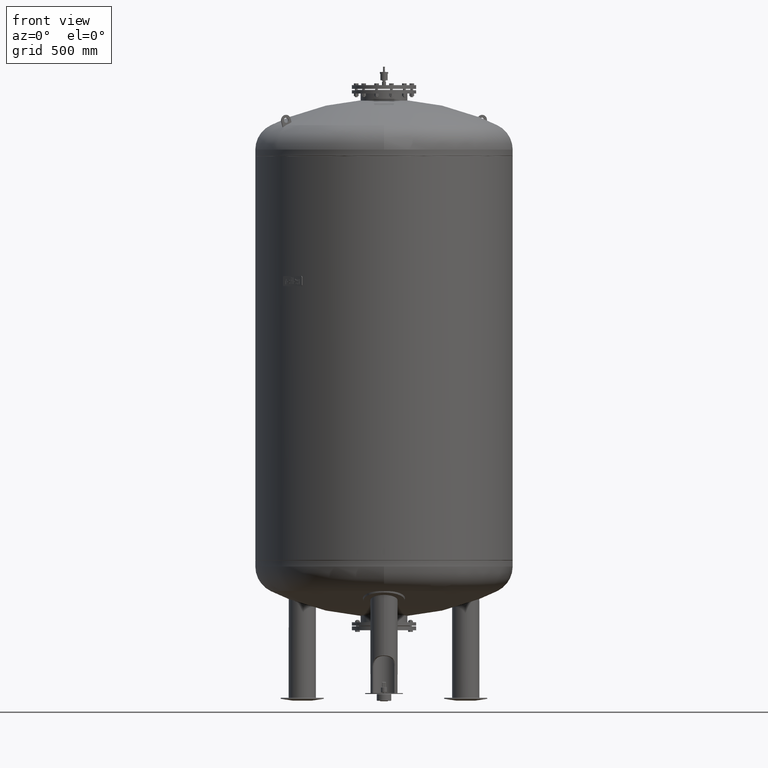
[diagram: clean part render]
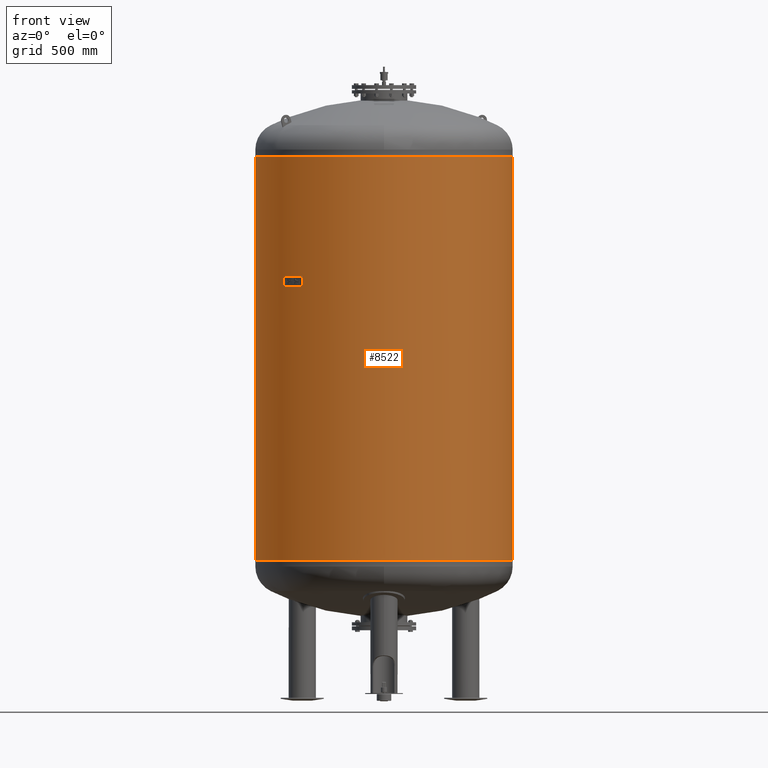
[diagram: same view with one face highlighted and labeled with its STEP entity id]
A machine part, front view. The second image highlights one B-rep face of the part: STEP entity #8522.
In plain terms, the highlighted cylindrical surface (partial cylindrical patch) has radius 750 mm, axis along (0, 0, 1).
Its self-contained STEP definition (entity closure, byte-faithful):
#8481=CARTESIAN_POINT('',(8.322769E-015,0.0,2588.500000000000000));
#8482=DIRECTION('',(1.414234E-017,0.0,1.0));
#8483=DIRECTION('',(1.0,0.0,0.0));
#8484=AXIS2_PLACEMENT_3D('',#8481,#8482,#8483);
#8485=CYLINDRICAL_SURFACE('',#8484,750.000000000000910);
#8486=CARTESIAN_POINT('',(750.000000000001360,0.0,3177.0));
#8487=VERTEX_POINT('',#8486);
#8488=CARTESIAN_POINT('',(749.999999999999890,0.0,822.999999999999770));
#8489=VERTEX_POINT('',#8488);
#8490=CARTESIAN_POINT('',(750.000000000001360,0.0,3177.0));
#8491=DIRECTION('',(0.0,0.0,-1.0));
#8492=VECTOR('',#8491,2354.0);
#8493=LINE('',#8490,#8492);
#8494=EDGE_CURVE('',#8487,#8489,#8493,.T.);
#8495=ORIENTED_EDGE('',*,*,#8494,.F.);
#8496=CARTESIAN_POINT('',(-750.000000000000910,-9.184548E-014,3177.0));
#8497=VERTEX_POINT('',#8496);
#8498=CARTESIAN_POINT('',(1.664554E-014,0.0,3177.0));
#8499=DIRECTION('',(0.0,0.0,1.0));
#8500=DIRECTION('',(1.0,0.0,0.0));
#8501=AXIS2_PLACEMENT_3D('',#8498,#8499,#8500);
#8502=CIRCLE('',#8501,750.000000000001360);
#8503=EDGE_CURVE('',#8497,#8487,#8502,.T.);
#8504=ORIENTED_EDGE('',*,*,#8503,.F.);
#8505=CARTESIAN_POINT('',(-749.999999999999770,-9.184548E-014,822.999999999999660));
#8506=VERTEX_POINT('',#8505);
#8507=CARTESIAN_POINT('',(-750.000000000000910,-9.184548E-014,3177.0));
#8508=DIRECTION('',(0.0,0.0,-1.0));
#8509=VECTOR('',#8508,2354.000000000000500);
#8510=LINE('',#8507,#8509);
#8511=EDGE_CURVE('',#8497,#8506,#8510,.T.);
#8512=ORIENTED_EDGE('',*,*,#8511,.T.);
#8513=CARTESIAN_POINT('',(-1.664554E-014,0.0,822.999999999999550));
#8514=DIRECTION('',(0.0,0.0,1.0));
#8515=DIRECTION('',(1.0,0.0,0.0));
#8516=AXIS2_PLACEMENT_3D('',#8513,#8514,#8515);
#8517=CIRCLE('',#8516,749.999999999999890);
#8518=EDGE_CURVE('',#8506,#8489,#8517,.T.);
#8519=ORIENTED_EDGE('',*,*,#8518,.T.);
#8520=EDGE_LOOP('',(#8495,#8504,#8512,#8519));
#8521=FACE_OUTER_BOUND('',#8520,.T.);
#8522=ADVANCED_FACE('',(#8521),#8485,.T.);